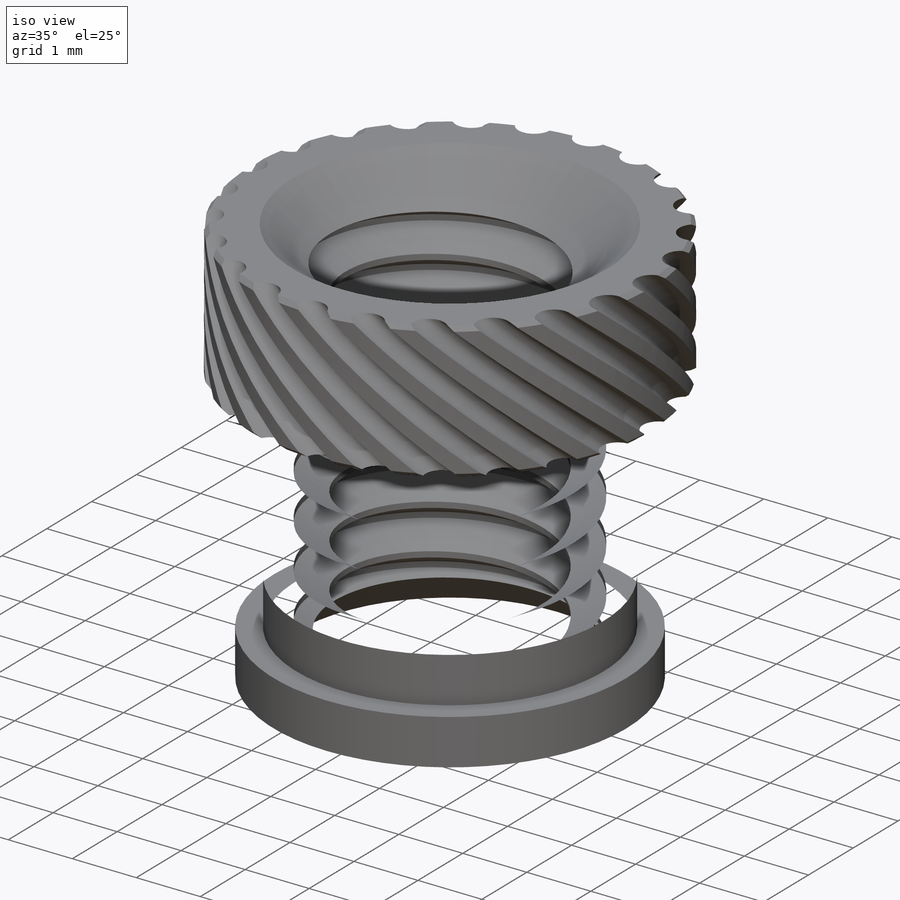
[diagram: iso view]
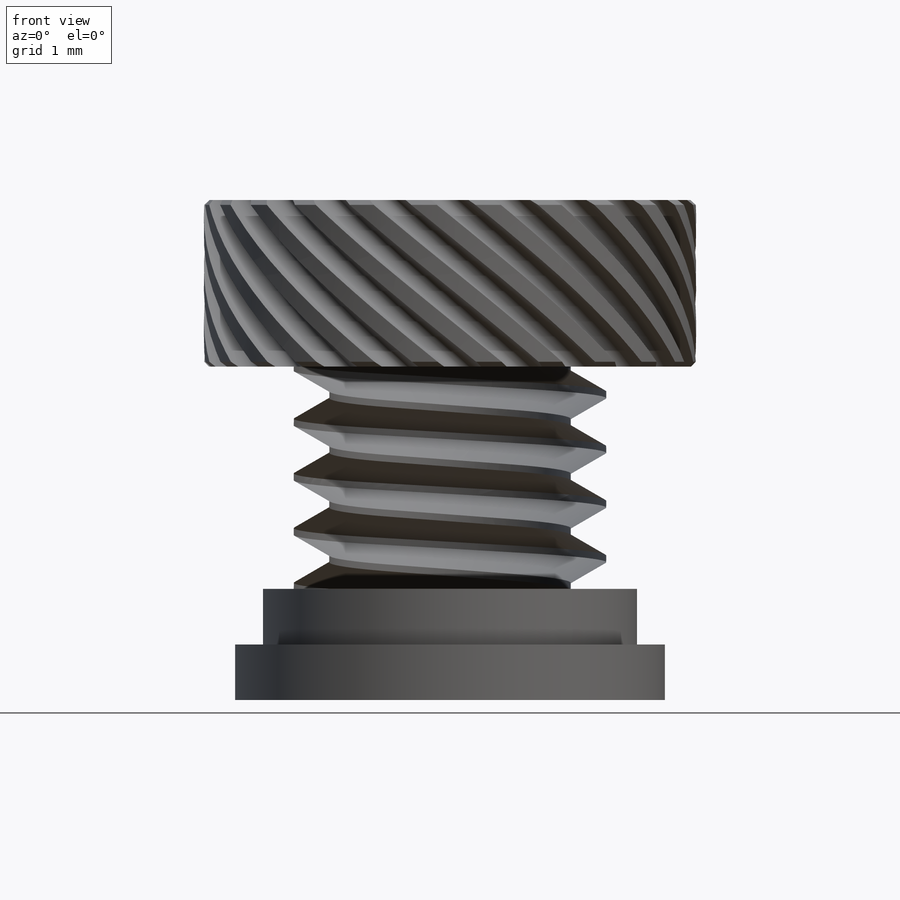
[diagram: front view]
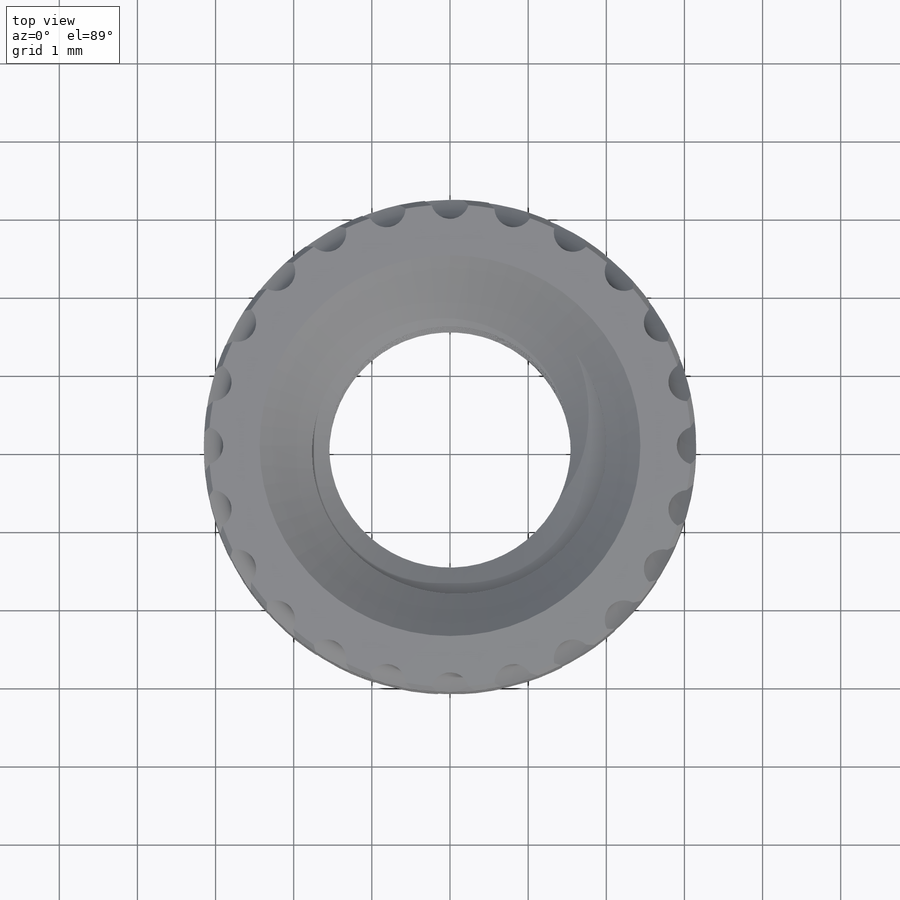
[diagram: top view]
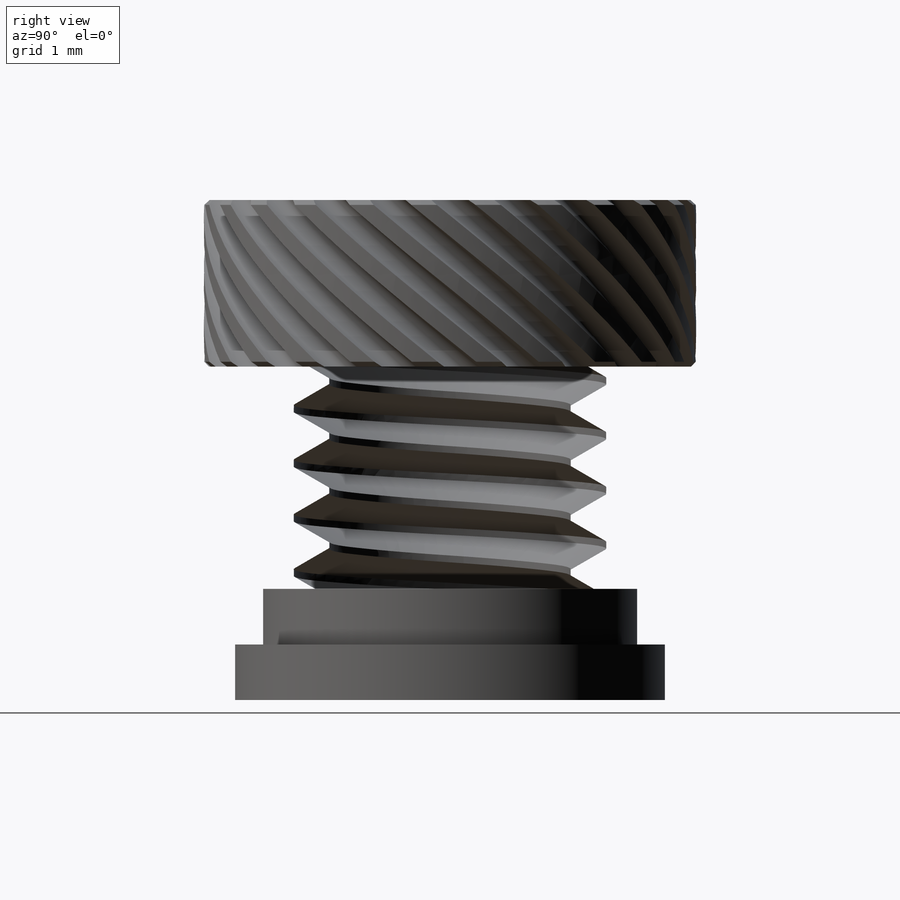
[diagram: right view]
SOLIDWORKS PART (.sldprt)
format: sldprt  version: not decoded by parser v0  size: 1,747,968 bytes
history: native  units: mm
features: sketch x10, cut_extrude x3, revolve x2, helix x2, sweep x2, material x1, plane x1, chamfer x1, pattern_circular x1, mirror x1, boolean_combine x1 (+15 scaffold rows collapsed; 1 parser-record rows omitted)
feature tree (41):
  scaffold x15  (default folders/planes/origin — collapsed)
  material  "Material <not specified>"
  sketch  "Layout "  dims[c1.Installed Length=6.4mm c1.D2=3.6322mm c1.D3=3.1242mm c1.D4=0.635mm c1.D5=~0.329039mm c1.D6=0.635mm c2.D4=~0.239486mm c2.D5=4.191mm c2.D6=0.254mm c2.D7=2.54mm c2.D8=5.08mm c2.D9=2.54mm c3.D7=~3.15275mm c3.D8=5.08mm c3.D9=5.08mm c4.D8=5.08mm c4.D9=5.08mm c5.D8=5.08mm c5.D9=2.54mm c5.D7=0.127mm c6.D8=0.127mm c6.D7=~0.28582mm c7.D8=0.508mm c7.D9=0.508mm c8.D8=0.508mm c8.D7=~0.128652mm c8.D6=~0.667724mm c8.TOP OD=6.3mm c8.BTM OD=5.5mm c9.D6=~0.239486mm c9.D7=~0.575733mm c9.D8=~0.575733mm c10.D7=~0.575733mm c10.D8=~0.575733mm c11.D7=~0.575733mm c11.D6=~0.416242mm c12.D7=~0.478971mm c12.D6=~0.214325mm c13.D6=135.0deg c13.D7=~0.239486mm c13.D8=~0.575733mm c13.D9=~0.575733mm c14.D8=~0.575733mm c14.D9=~0.575733mm c14.D7=~0.370504mm c15.D8=~0.478971mm c15.D9=~0.239486mm c15.D7=~0.249108mm c15.D4=0.254mm c16.D7=0.381mm c16.D5=0.2032mm c17.D7=~1.800909mm c17.D5=~1.14798mm c17.D4=~0.355556mm c18.D5=0.1016mm c18.D7=~0.326476mm c18.D8=~0.326476mm c19.D7=~0.326476mm c19.D5=~0.229371mm c20.D7=0.2032mm c20.D8=0.1016mm c20.D5=~2.133333mm c20.Pitch=0.7mm c20.Thread OD=4.0mm c20.D1=~0.355556mm]
  plane  "Plane1"
  sketch  "Sketch3"
  revolve  "Revolve1"  Angle=360deg
  sketch  "Sketch4"
  helix  "Helix/Spiral1"  Pitch=6.4mm
  sketch  "Sketch6"
  revolve  "Revolve2"  Angle=360deg
  chamfer  "Chamfer1"  Distance=0.0635mm Angle=45deg
  sketch  "Sketch5"  dims[c1.D1=0.1651mm c1.D2=~0.307491mm c2.D1=~1.809922mm c3.D1=9.0deg]
  sweep  "Cut-Sweep1"
  pattern_circular  "CirPattern1"  Count=24 Angle=360deg
  mirror  "Mirror2"
  sketch  "Sketch7"
  cut_extrude  "Cut-Extrude1"  [1 undecoded]
  sketch  "Sketch8"
  helix  "Helix/Spiral2"  Pitch=7.1mm
  parser-record x1  (decoder bookkeeping rows leaked as tree rows — omitted from the tree; the rows remain in map.json)
  sketch  "Sketch9"  dims[D1=0.0875mm D2=0.35mm]
  sweep  "Sweep2"
  sketch  "Sketch10"  dims[c1.D1=1.8161mm c1.D2=5.0mm c2.D1=0.0635mm]
  cut_extrude  "Cut-Extrude2"  Depth=2.54mm
  sketch  "Sketch11"  dims[D1=0.0mm D2=0.127mm]
  cut_extrude  "Cut-Extrude4"  [1 undecoded]
  boolean_combine  "Combine1"
decode coverage: 12 of 23 modeling features carry decoded parameters
note: ~ marks probable driven/reference dimensions
note: 2 parameter values undecoded
note: suppression state not decoded; provenance and decode notes live in map.json
